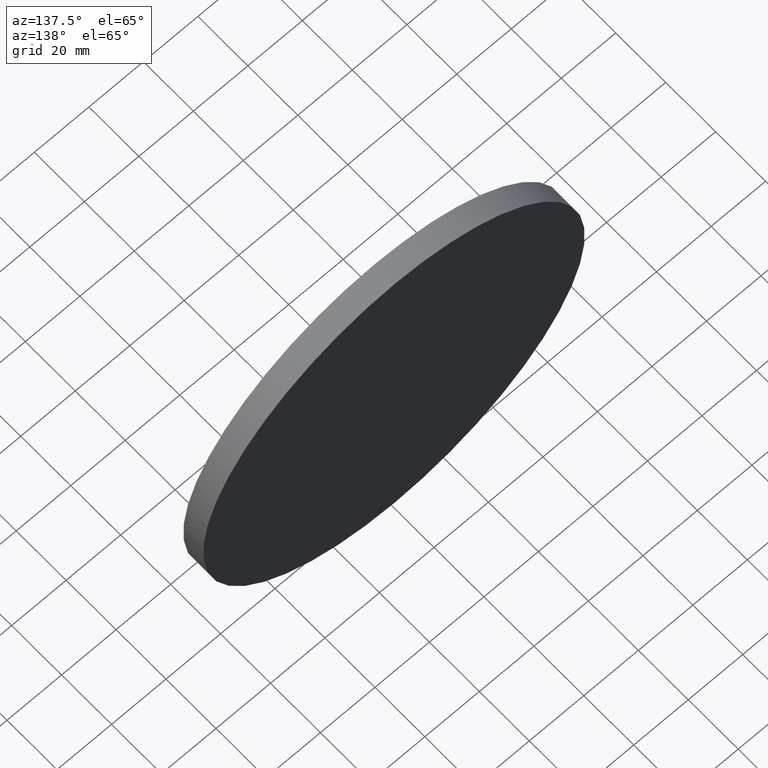
[diagram: clean part render]
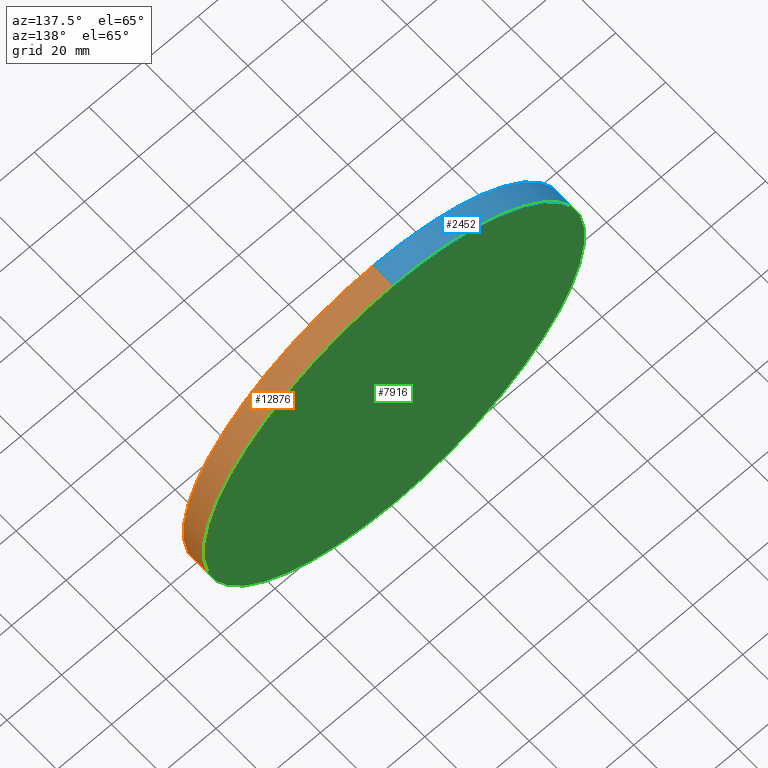
[diagram: same view with three faces highlighted in distinct colors, each labeled with its STEP entity id]
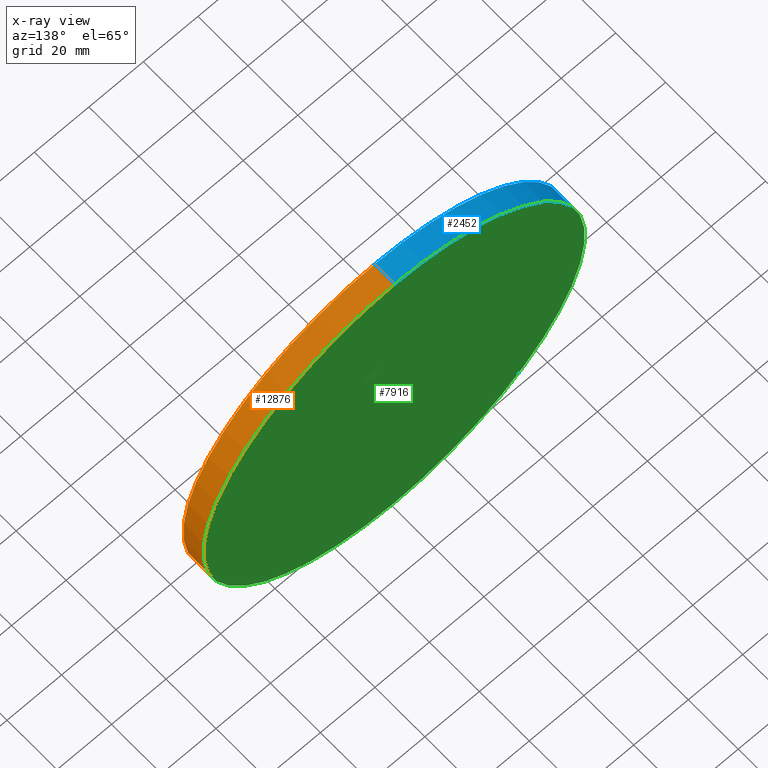
[diagram: x-ray of the same camera — body ghosted, the three highlighted faces saturated]
A machine part, auxiliary view with three faces highlighted in distinct colors.
The next image is the same camera in x-ray (body ghosted, the three faces saturated) — at least one of them is partly hidden behind the body in this view.
Their STEP definitions:

[orange] entity #12876 — the highlighted cylindrical surface (partial cylindrical patch) has radius 70 mm, axis along (-0, -1, -0).
#269 = DIRECTION ( 'NONE',  ( 0.000000000000000000, 1.000000000000000000, 0.000000000000000000 ) ) ;
#396 = CARTESIAN_POINT ( 'NONE',  ( 0.000000000000000000, -4.000000000000000000, -70.00000000000001421 ) ) ;
#598 = EDGE_CURVE ( 'NONE', #5165, #2871, #9644, .T. ) ;
#1546 = DIRECTION ( 'NONE',  ( 0.000000000000000000, 0.000000000000000000, 1.000000000000000000 ) ) ;
#2074 = ORIENTED_EDGE ( 'NONE', *, *, #598, .F. ) ;
#2545 = DIRECTION ( 'NONE',  ( 0.000000000000000000, 0.000000000000000000, -1.000000000000000000 ) ) ;
#2598 = DIRECTION ( 'NONE',  ( -0.000000000000000000, -1.000000000000000000, -0.000000000000000000 ) ) ;
#2871 = VERTEX_POINT ( 'NONE', #396 ) ;
#3612 = VERTEX_POINT ( 'NONE', #3908 ) ;
#3742 = VECTOR ( 'NONE', #12297, 1000.000000000000000 ) ;
#3908 = CARTESIAN_POINT ( 'NONE',  ( 8.572527594031474570E-15, -4.000000000000000000, 70.00000000000001421 ) ) ;
#3944 = VECTOR ( 'NONE', #4025, 1000.000000000000000 ) ;
#3961 = CYLINDRICAL_SURFACE ( 'NONE', #13245, 70.00000000000001421 ) ;
#4025 = DIRECTION ( 'NONE',  ( -0.000000000000000000, -1.000000000000000000, -0.000000000000000000 ) ) ;
#4605 = ORIENTED_EDGE ( 'NONE', *, *, #5193, .T. ) ;
#5165 = VERTEX_POINT ( 'NONE', #10919 ) ;
#5193 = EDGE_CURVE ( 'NONE', #3612, #2871, #9579, .T. ) ;
#6041 = CARTESIAN_POINT ( 'NONE',  ( 8.572527594031474570E-15, 4.000000000000000000, 70.00000000000001421 ) ) ;
#6162 = CIRCLE ( 'NONE', #11165, 70.00000000000001421 ) ;
#6828 = VERTEX_POINT ( 'NONE', #13499 ) ;
#7896 = DIRECTION ( 'NONE',  ( 0.000000000000000000, 1.000000000000000000, 0.000000000000000000 ) ) ;
#8490 = ORIENTED_EDGE ( 'NONE', *, *, #12251, .F. ) ;
#8932 = DIRECTION ( 'NONE',  ( 0.000000000000000000, 0.000000000000000000, 1.000000000000000000 ) ) ;
#9030 = CARTESIAN_POINT ( 'NONE',  ( 0.000000000000000000, 4.000000000000000000, -70.00000000000001421 ) ) ;
#9579 = CIRCLE ( 'NONE', #12228, 70.00000000000001421 ) ;
#9644 = LINE ( 'NONE', #9030, #3742 ) ;
#10010 = FACE_OUTER_BOUND ( 'NONE', #11174, .T. ) ;
#10919 = CARTESIAN_POINT ( 'NONE',  ( 0.000000000000000000, 4.000000000000000000, -70.00000000000001421 ) ) ;
#11165 = AXIS2_PLACEMENT_3D ( 'NONE', #12236, #269, #8932 ) ;
#11174 = EDGE_LOOP ( 'NONE', ( #8490, #13857, #4605, #2074 ) ) ;
#11204 = CARTESIAN_POINT ( 'NONE',  ( 0.000000000000000000, -4.000000000000000000, 0.000000000000000000 ) ) ;
#12054 = LINE ( 'NONE', #6041, #3944 ) ;
#12228 = AXIS2_PLACEMENT_3D ( 'NONE', #11204, #7896, #1546 ) ;
#12236 = CARTESIAN_POINT ( 'NONE',  ( 0.000000000000000000, 4.000000000000000000, 0.000000000000000000 ) ) ;
#12251 = EDGE_CURVE ( 'NONE', #6828, #5165, #6162, .T. ) ;
#12297 = DIRECTION ( 'NONE',  ( -0.000000000000000000, -1.000000000000000000, -0.000000000000000000 ) ) ;
#12876 = ADVANCED_FACE ( 'NONE', ( #10010 ), #3961, .T. ) ;
#13245 = AXIS2_PLACEMENT_3D ( 'NONE', #13348, #2598, #2545 ) ;
#13348 = CARTESIAN_POINT ( 'NONE',  ( 0.000000000000000000, 4.000000000000000000, 0.000000000000000000 ) ) ;
#13499 = CARTESIAN_POINT ( 'NONE',  ( 8.572527594031474570E-15, 4.000000000000000000, 70.00000000000001421 ) ) ;
#13707 = EDGE_CURVE ( 'NONE', #6828, #3612, #12054, .T. ) ;
#13857 = ORIENTED_EDGE ( 'NONE', *, *, #13707, .T. ) ;

[blue] entity #2452 — the highlighted cylindrical surface (partial cylindrical patch) has radius 70 mm, axis along (-0, -1, -0).
#396 = CARTESIAN_POINT ( 'NONE',  ( 0.000000000000000000, -4.000000000000000000, -70.00000000000001421 ) ) ;
#598 = EDGE_CURVE ( 'NONE', #5165, #2871, #9644, .T. ) ;
#1339 = DIRECTION ( 'NONE',  ( 0.000000000000000000, 1.000000000000000000, 0.000000000000000000 ) ) ;
#1491 = FACE_OUTER_BOUND ( 'NONE', #9139, .T. ) ;
#2452 = ADVANCED_FACE ( 'NONE', ( #1491 ), #3704, .T. ) ;
#2555 = AXIS2_PLACEMENT_3D ( 'NONE', #5318, #12871, #9705 ) ;
#2871 = VERTEX_POINT ( 'NONE', #396 ) ;
#3612 = VERTEX_POINT ( 'NONE', #3908 ) ;
#3704 = CYLINDRICAL_SURFACE ( 'NONE', #5248, 70.00000000000001421 ) ;
#3742 = VECTOR ( 'NONE', #12297, 1000.000000000000000 ) ;
#3908 = CARTESIAN_POINT ( 'NONE',  ( 8.572527594031474570E-15, -4.000000000000000000, 70.00000000000001421 ) ) ;
#3944 = VECTOR ( 'NONE', #4025, 1000.000000000000000 ) ;
#4025 = DIRECTION ( 'NONE',  ( -0.000000000000000000, -1.000000000000000000, -0.000000000000000000 ) ) ;
#4278 = AXIS2_PLACEMENT_3D ( 'NONE', #5656, #1339, #13340 ) ;
#5165 = VERTEX_POINT ( 'NONE', #10919 ) ;
#5248 = AXIS2_PLACEMENT_3D ( 'NONE', #6592, #9790, #6673 ) ;
#5318 = CARTESIAN_POINT ( 'NONE',  ( 0.000000000000000000, 4.000000000000000000, 0.000000000000000000 ) ) ;
#5656 = CARTESIAN_POINT ( 'NONE',  ( 0.000000000000000000, -4.000000000000000000, 0.000000000000000000 ) ) ;
#5671 = CIRCLE ( 'NONE', #2555, 70.00000000000001421 ) ;
#5848 = CIRCLE ( 'NONE', #4278, 70.00000000000001421 ) ;
#6041 = CARTESIAN_POINT ( 'NONE',  ( 8.572527594031474570E-15, 4.000000000000000000, 70.00000000000001421 ) ) ;
#6592 = CARTESIAN_POINT ( 'NONE',  ( 0.000000000000000000, 4.000000000000000000, 0.000000000000000000 ) ) ;
#6623 = ORIENTED_EDGE ( 'NONE', *, *, #8815, .T. ) ;
#6673 = DIRECTION ( 'NONE',  ( 0.000000000000000000, 0.000000000000000000, -1.000000000000000000 ) ) ;
#6828 = VERTEX_POINT ( 'NONE', #13499 ) ;
#8671 = ORIENTED_EDGE ( 'NONE', *, *, #9795, .F. ) ;
#8815 = EDGE_CURVE ( 'NONE', #2871, #3612, #5848, .T. ) ;
#9030 = CARTESIAN_POINT ( 'NONE',  ( 0.000000000000000000, 4.000000000000000000, -70.00000000000001421 ) ) ;
#9139 = EDGE_LOOP ( 'NONE', ( #9783, #8671, #13771, #6623 ) ) ;
#9644 = LINE ( 'NONE', #9030, #3742 ) ;
#9705 = DIRECTION ( 'NONE',  ( 0.000000000000000000, 0.000000000000000000, 1.000000000000000000 ) ) ;
#9783 = ORIENTED_EDGE ( 'NONE', *, *, #13707, .F. ) ;
#9790 = DIRECTION ( 'NONE',  ( -0.000000000000000000, -1.000000000000000000, -0.000000000000000000 ) ) ;
#9795 = EDGE_CURVE ( 'NONE', #5165, #6828, #5671, .T. ) ;
#10919 = CARTESIAN_POINT ( 'NONE',  ( 0.000000000000000000, 4.000000000000000000, -70.00000000000001421 ) ) ;
#12054 = LINE ( 'NONE', #6041, #3944 ) ;
#12297 = DIRECTION ( 'NONE',  ( -0.000000000000000000, -1.000000000000000000, -0.000000000000000000 ) ) ;
#12871 = DIRECTION ( 'NONE',  ( 0.000000000000000000, 1.000000000000000000, 0.000000000000000000 ) ) ;
#13340 = DIRECTION ( 'NONE',  ( 0.000000000000000000, 0.000000000000000000, 1.000000000000000000 ) ) ;
#13499 = CARTESIAN_POINT ( 'NONE',  ( 8.572527594031474570E-15, 4.000000000000000000, 70.00000000000001421 ) ) ;
#13707 = EDGE_CURVE ( 'NONE', #6828, #3612, #12054, .T. ) ;
#13771 = ORIENTED_EDGE ( 'NONE', *, *, #598, .T. ) ;

[green] entity #7916 — the highlighted planar face has unit normal (0, 1, 0).
#269 = DIRECTION ( 'NONE',  ( 0.000000000000000000, 1.000000000000000000, 0.000000000000000000 ) ) ;
#1267 = DIRECTION ( 'NONE',  ( 0.000000000000000000, 1.000000000000000000, 0.000000000000000000 ) ) ;
#2555 = AXIS2_PLACEMENT_3D ( 'NONE', #5318, #12871, #9705 ) ;
#3475 = ORIENTED_EDGE ( 'NONE', *, *, #12251, .T. ) ;
#5165 = VERTEX_POINT ( 'NONE', #10919 ) ;
#5318 = CARTESIAN_POINT ( 'NONE',  ( 0.000000000000000000, 4.000000000000000000, 0.000000000000000000 ) ) ;
#5671 = CIRCLE ( 'NONE', #2555, 70.00000000000001421 ) ;
#6162 = CIRCLE ( 'NONE', #11165, 70.00000000000001421 ) ;
#6584 = DIRECTION ( 'NONE',  ( 0.000000000000000000, -0.000000000000000000, 1.000000000000000000 ) ) ;
#6622 = PLANE ( 'NONE',  #13769 ) ;
#6828 = VERTEX_POINT ( 'NONE', #13499 ) ;
#7916 = ADVANCED_FACE ( 'NONE', ( #9393 ), #6622, .T. ) ;
#8932 = DIRECTION ( 'NONE',  ( 0.000000000000000000, 0.000000000000000000, 1.000000000000000000 ) ) ;
#9393 = FACE_OUTER_BOUND ( 'NONE', #12960, .T. ) ;
#9705 = DIRECTION ( 'NONE',  ( 0.000000000000000000, 0.000000000000000000, 1.000000000000000000 ) ) ;
#9795 = EDGE_CURVE ( 'NONE', #5165, #6828, #5671, .T. ) ;
#10046 = ORIENTED_EDGE ( 'NONE', *, *, #9795, .T. ) ;
#10919 = CARTESIAN_POINT ( 'NONE',  ( 0.000000000000000000, 4.000000000000000000, -70.00000000000001421 ) ) ;
#11165 = AXIS2_PLACEMENT_3D ( 'NONE', #12236, #269, #8932 ) ;
#12236 = CARTESIAN_POINT ( 'NONE',  ( 0.000000000000000000, 4.000000000000000000, 0.000000000000000000 ) ) ;
#12251 = EDGE_CURVE ( 'NONE', #6828, #5165, #6162, .T. ) ;
#12871 = DIRECTION ( 'NONE',  ( 0.000000000000000000, 1.000000000000000000, 0.000000000000000000 ) ) ;
#12960 = EDGE_LOOP ( 'NONE', ( #10046, #3475 ) ) ;
#13221 = CARTESIAN_POINT ( 'NONE',  ( 0.000000000000000000, 4.000000000000000000, 0.000000000000000000 ) ) ;
#13499 = CARTESIAN_POINT ( 'NONE',  ( 8.572527594031474570E-15, 4.000000000000000000, 70.00000000000001421 ) ) ;
#13769 = AXIS2_PLACEMENT_3D ( 'NONE', #13221, #1267, #6584 ) ;